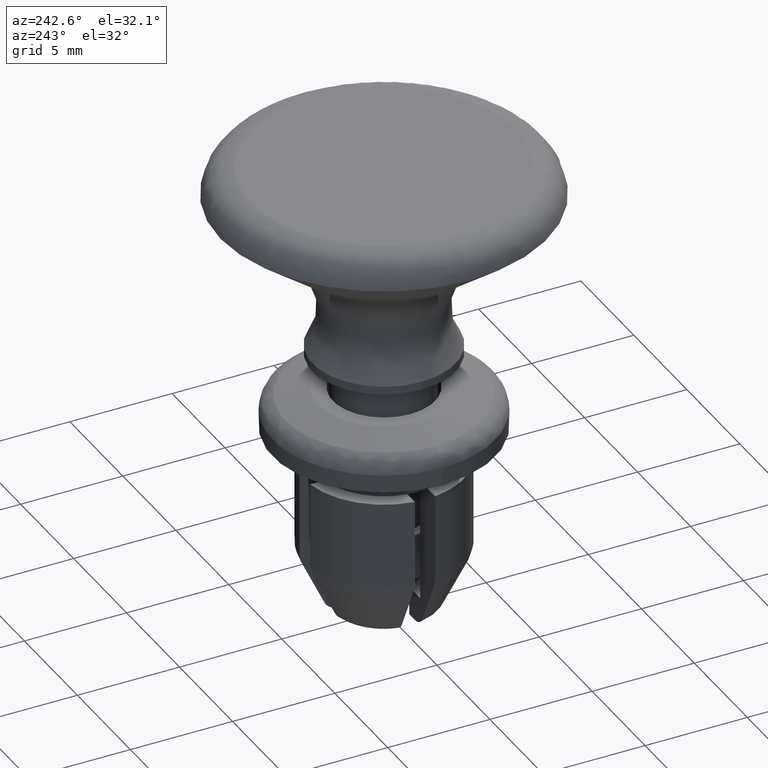
[diagram: clean part render]
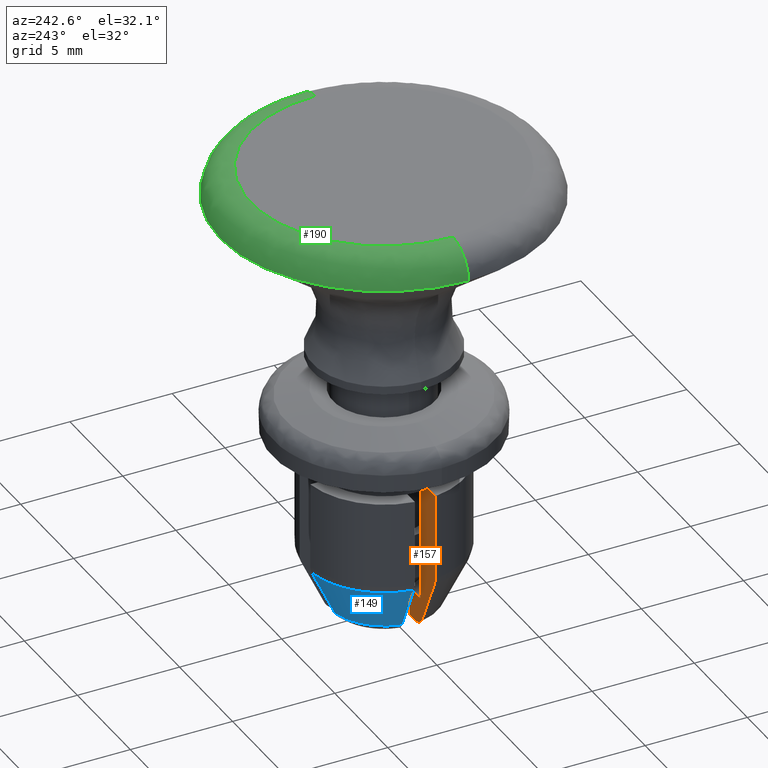
[diagram: same view with three faces highlighted in distinct colors, each labeled with its STEP entity id]
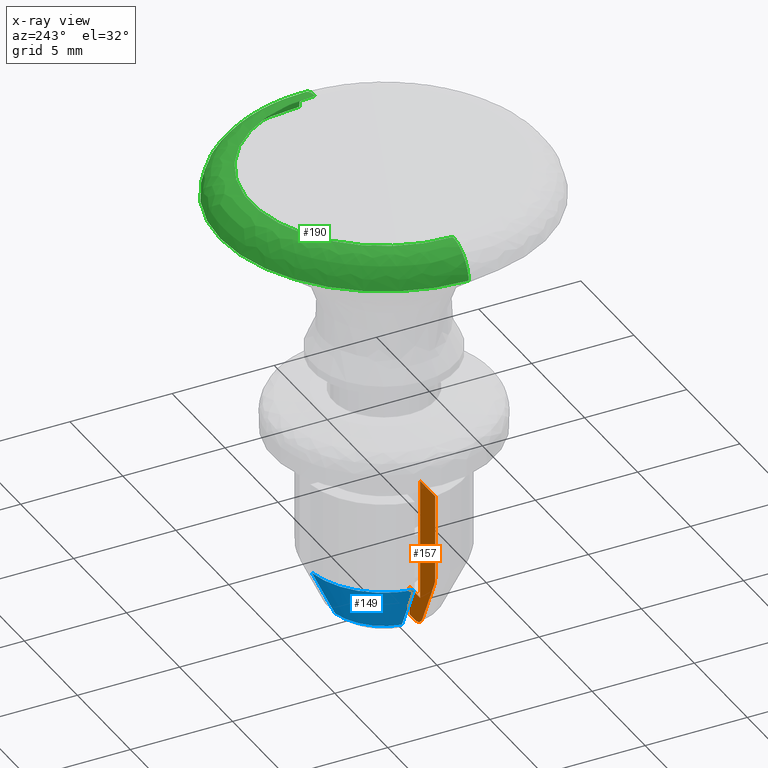
[diagram: x-ray of the same camera — body ghosted, the three highlighted faces saturated]
A machine part, auxiliary view with three faces highlighted in distinct colors.
The next image is the same camera in x-ray (body ghosted, the three faces saturated) — at least one of them is partly hidden behind the body in this view.
Their STEP definitions:

[orange] entity #157 — the highlighted planar face has unit normal (0, 1, 0).
#157=ADVANCED_FACE('',(#646),#645,.T.);
#645=PLANE('',#1310);
#646=FACE_OUTER_BOUND('',#1311,.T.);
#1307=CARTESIAN_POINT('',(-4.11317615704E+00,-5.00000000000E-01,-1.17403300002E+01));
#1308=DIRECTION('',(0.00000000000E+00,1.00000000000E+00,0.00000000000E+00));
#1309=DIRECTION('',(0.00000000000E+00,0.00000000000E+00,1.00000000000E+00));
#1310=AXIS2_PLACEMENT_3D('',#1307,#1308,#1309);
#1311=EDGE_LOOP('',(#1882,#1883,#1884,#1885,#1886,#1887,#1888,#1889,#1890,#1891));
#1882=ORIENTED_EDGE('',*,*,#2187,.F.);
#1883=ORIENTED_EDGE('',*,*,#2144,.T.);
#1884=ORIENTED_EDGE('',*,*,#2115,.F.);
#1885=ORIENTED_EDGE('',*,*,#2165,.T.);
#1886=ORIENTED_EDGE('',*,*,#2064,.F.);
#1887=ORIENTED_EDGE('',*,*,#2178,.F.);
#1888=ORIENTED_EDGE('',*,*,#2182,.F.);
#1889=ORIENTED_EDGE('',*,*,#2120,.T.);
#1890=ORIENTED_EDGE('',*,*,#2155,.F.);
#1891=ORIENTED_EDGE('',*,*,#2158,.F.);
#2064=EDGE_CURVE('',#2327,#2320,#2334,.T.);
#2115=EDGE_CURVE('',#2684,#2685,#2686,.T.);
#2120=EDGE_CURVE('',#2704,#2711,#2718,.T.);
#2144=EDGE_CURVE('',#2877,#2685,#2878,.T.);
#2155=EDGE_CURVE('',#2944,#2711,#2951,.T.);
#2158=EDGE_CURVE('',#2964,#2944,#2971,.T.);
#2165=EDGE_CURVE('',#2684,#2320,#3014,.T.);
#2178=EDGE_CURVE('',#3090,#2327,#3097,.T.);
#2182=EDGE_CURVE('',#2704,#3090,#3122,.T.);
#2187=EDGE_CURVE('',#2877,#2964,#3152,.T.);
#2320=VERTEX_POINT('',#3609);
#2327=VERTEX_POINT('',#3614);
#2334=(BOUNDED_CURVE() B_SPLINE_CURVE(3,(#3619,#3620,#3621,#3622,#3623,#3624),.UNSPECIFIED.,.F.,.F.) B_SPLINE_CURVE_WITH_KNOTS((4,2,4),(4.53704245333E-03,4.96659459827E-03,5.39612859432E-03),.UNSPECIFIED.) CURVE() GEOMETRIC_REPRESENTATION_ITEM() RATIONAL_B_SPLINE_CURVE((1.00000000000E+00,1.00000000000E+00,1.00000000000E+00,1.00000000000E+00,1.00000000000E+00,1.00000000000E+00)) REPRESENTATION_ITEM('') );
#2684=VERTEX_POINT('',#3855);
#2685=VERTEX_POINT('',#3856);
#2686=LINE('',#3857,#3858);
#2704=VERTEX_POINT('',#3868);
#2711=VERTEX_POINT('',#3873);
#2718=LINE('',#3878,#3879);
#2877=VERTEX_POINT('',#3986);
#2878=LINE('',#3987,#3988);
#2944=VERTEX_POINT('',#4030);
#2951=LINE('',#4035,#4036);
#2964=VERTEX_POINT('',#4043);
#2971=LINE('',#4048,#4049);
#3014=LINE('',#4074,#4075);
#3090=VERTEX_POINT('',#4127);
#3097=(BOUNDED_CURVE() B_SPLINE_CURVE(3,(#4132,#4133,#4134,#4135),.UNSPECIFIED.,.F.,.F.) B_SPLINE_CURVE_WITH_KNOTS((4,4),(3.02675948293E-03,5.68662966127E-03),.UNSPECIFIED.) CURVE() GEOMETRIC_REPRESENTATION_ITEM() RATIONAL_B_SPLINE_CURVE((1.00000000000E+00,1.00000000000E+00,1.00000000000E+00,1.00000000000E+00)) REPRESENTATION_ITEM('') );
#3122=(BOUNDED_CURVE() B_SPLINE_CURVE(3,(#4149,#4150,#4151,#4152,#4153,#4154),.UNSPECIFIED.,.F.,.F.) B_SPLINE_CURVE_WITH_KNOTS((4,2,4),(4.45689285409E-03,4.62552359386E-03,4.79415433363E-03),.UNSPECIFIED.) CURVE() GEOMETRIC_REPRESENTATION_ITEM() RATIONAL_B_SPLINE_CURVE((1.00000000000E+00,1.00000000000E+00,1.00000000000E+00,1.00000000000E+00,1.00000000000E+00,1.00000000000E+00)) REPRESENTATION_ITEM('') );
#3152=LINE('',#4171,#4172);
#3609=CARTESIAN_POINT('',(-1.95950752863E+00,-5.00004366197E-01,-1.10003000000E+01));
#3614=CARTESIAN_POINT('',(-2.65533500711E+00,-5.00000000000E-01,-1.05674000000E+01));
#3619=CARTESIAN_POINT('',(-2.65533500711E+00,-5.00000000000E-01,-1.05674000000E+01));
#3620=CARTESIAN_POINT('',(-2.59380589463E+00,-5.00000000000E-01,-1.06969771391E+01));
#3621=CARTESIAN_POINT('',(-2.49239977132E+00,-5.00000000000E-01,-1.08093185071E+01));
#3622=CARTESIAN_POINT('',(-2.24780289933E+00,-5.00000000000E-01,-1.09601820029E+01));
#3623=CARTESIAN_POINT('',(-2.10280856637E+00,-5.00000000000E-01,-1.10002966106E+01));
#3624=CARTESIAN_POINT('',(-1.95950752863E+00,-5.00000000000E-01,-1.10003000002E+01));
#3855=CARTESIAN_POINT('',(-1.41421356237E+00,-5.00000000000E-01,-1.10003000000E+01));
#3856=CARTESIAN_POINT('',(-1.41421356237E+00,-5.00000000000E-01,-9.60030000000E+00));
#3857=CARTESIAN_POINT('',(-1.41421356237E+00,-5.00000000000E-01,-1.10003000000E+01));
#3858=VECTOR('',#3859,1.40000000000E+00);
#3859=DIRECTION('',(0.00000000000E+00,0.00000000000E+00,1.00000000000E+00));
#3868=CARTESIAN_POINT('',(-3.86781592116E+00,-5.00000000000E-01,-7.83400000000E+00));
#3873=CARTESIAN_POINT('',(-3.86781592116E+00,-5.00000000000E-01,-3.60000000000E+00));
#3878=CARTESIAN_POINT('',(-3.86781592116E+00,-5.00000000000E-01,-7.83400000000E+00));
#3879=VECTOR('',#3880,4.23400000000E+00);
#3880=DIRECTION('',(0.00000000000E+00,0.00000000000E+00,1.00000000000E+00));
#3986=CARTESIAN_POINT('',(-2.44948974278E+00,-5.00000000000E-01,-9.60030000000E+00));
#3987=CARTESIAN_POINT('',(-2.44948974278E+00,-5.00000000000E-01,-9.60030000000E+00));
#3988=VECTOR('',#3989,1.03527618041E+00);
#3989=DIRECTION('',(1.00000000000E+00,0.00000000000E+00,0.00000000000E+00));
#4030=CARTESIAN_POINT('',(-3.16069612586E+00,-5.00000000000E-01,-3.60000000000E+00));
#4035=CARTESIAN_POINT('',(-3.16069612586E+00,-5.00000000000E-01,-3.60000000000E+00));
#4036=VECTOR('',#4037,7.07119795307E-01);
#4037=DIRECTION('',(-1.00000000000E+00,0.00000000000E+00,0.00000000000E+00));
#4043=CARTESIAN_POINT('',(-2.44948974278E+00,-5.00000000000E-01,-3.60000000000E+00));
#4048=CARTESIAN_POINT('',(-2.44948974278E+00,-5.00000000000E-01,-3.60000000000E+00));
#4049=VECTOR('',#4050,7.11206383073E-01);
#4050=DIRECTION('',(-1.00000000000E+00,0.00000000000E+00,0.00000000000E+00));
#4074=CARTESIAN_POINT('',(-1.41421356237E+00,-5.00000000000E-01,-1.10003000000E+01));
#4075=VECTOR('',#4076,5.45293966259E-01);
#4076=DIRECTION('',(-1.00000000000E+00,0.00000000000E+00,0.00000000000E+00));
#4127=CARTESIAN_POINT('',(-3.79146062763E+00,-5.00000000000E-01,-8.16238480092E+00));
#4132=CARTESIAN_POINT('',(-3.79146062763E+00,-5.00000000000E-01,-8.16238480092E+00));
#4133=CARTESIAN_POINT('',(-3.41387554992E+00,-5.00000000000E-01,-8.96458841921E+00));
#4134=CARTESIAN_POINT('',(-3.03564167719E+00,-5.00000000000E-01,-9.76649375746E+00));
#4135=CARTESIAN_POINT('',(-2.65533500711E+00,-5.00000000000E-01,-1.05674000000E+01));
#4149=CARTESIAN_POINT('',(-3.86781592116E+00,-5.00000000000E-01,-7.83400000000E+00));
#4150=CARTESIAN_POINT('',(-3.86781592116E+00,-5.00000000000E-01,-7.89022395838E+00));
#4151=CARTESIAN_POINT('',(-3.86134449724E+00,-5.00000000000E-01,-7.94715114384E+00));
#4152=CARTESIAN_POINT('',(-3.83565703050E+00,-5.00000000000E-01,-8.05769033458E+00));
#4153=CARTESIAN_POINT('',(-3.81630516403E+00,-5.00000000000E-01,-8.11180828695E+00));
#4154=CARTESIAN_POINT('',(-3.79146062763E+00,-5.00000000000E-01,-8.16238480092E+00));
#4171=CARTESIAN_POINT('',(-2.44948974278E+00,-5.00000000000E-01,-9.60030000000E+00));
#4172=VECTOR('',#4173,6.00030000000E+00);
#4173=DIRECTION('',(0.00000000000E+00,0.00000000000E+00,1.00000000000E+00));

[blue] entity #149 — the highlighted face is a freeform B-spline surface patch.
#149=ADVANCED_FACE('',(#566),#565,.T.);
#565=( BOUNDED_SURFACE() B_SPLINE_SURFACE( 2,1,((#1246,#1247),(#1248,#1249),(#1250,#1251)), .UNSPECIFIED.,.F.,.F.,.F.) B_SPLINE_SURFACE_WITH_KNOTS((3,3),(2,2),(0.00000000000E+00,1.00000000000E+00),(0.00000000000E+00,1.00000000000E+00), .UNSPECIFIED. ) GEOMETRIC_REPRESENTATION_ITEM() RATIONAL_B_SPLINE_SURFACE(((1.00000000000E+00,1.00000000000E+00),(7.93400168838E-01,7.93400168838E-01),(1.00000000000E+00,1.00000000000E+00))) REPRESENTATION_ITEM('') SURFACE() );
#566=FACE_OUTER_BOUND('',#1252,.T.);
#1246=CARTESIAN_POINT('',(-3.52858351003E-01,2.67863284371E+00,-1.05678842372E+01));
#1247=CARTESIAN_POINT('',(-4.99490869183E-01,3.79175565357E+00,-8.16190056376E+00));
#1248=CARTESIAN_POINT('',(-2.40791825235E+00,2.40791823282E+00,-1.05678842372E+01));
#1249=CARTESIAN_POINT('',(-3.40854390258E+00,3.40854387494E+00,-8.16190056376E+00));
#1250=CARTESIAN_POINT('',(-2.67863284657E+00,3.52858329279E-01,-1.05678842372E+01));
#1251=CARTESIAN_POINT('',(-3.79175565762E+00,4.99490838432E-01,-8.16190056376E+00));
#1252=EDGE_LOOP('',(#1838,#1839,#1840,#1841));
#1838=ORIENTED_EDGE('',*,*,#2172,.F.);
#1839=ORIENTED_EDGE('',*,*,#2070,.T.);
#1840=ORIENTED_EDGE('',*,*,#2179,.T.);
#1841=ORIENTED_EDGE('',*,*,#2180,.T.);
#2070=EDGE_CURVE('',#2376,#2369,#2377,.T.);
#2172=EDGE_CURVE('',#2376,#3058,#3059,.T.);
#2179=EDGE_CURVE('',#2369,#3103,#3104,.T.);
#2180=EDGE_CURVE('',#3103,#3058,#3110,.T.);
#2369=VERTEX_POINT('',#3642);
#2376=VERTEX_POINT('',#3649);
#2377=(BOUNDED_CURVE() B_SPLINE_CURVE(3,(#3650,#3651,#3652,#3653),.UNSPECIFIED.,.F.,.F.) B_SPLINE_CURVE_WITH_KNOTS((4,4),(3.31531142691E-03,5.97512270310E-03),.UNSPECIFIED.) CURVE() GEOMETRIC_REPRESENTATION_ITEM() RATIONAL_B_SPLINE_CURVE((1.00000000000E+00,1.00000000000E+00,1.00000000000E+00,1.00000000000E+00)) REPRESENTATION_ITEM('') );
#3058=VERTEX_POINT('',#4101);
#3059=CIRCLE('',#4105,2.70200000000E+00);
#3103=VERTEX_POINT('',#4136);
#3104=CIRCLE('',#4140,3.82428734418E+00);
#3110=(BOUNDED_CURVE() B_SPLINE_CURVE(3,(#4141,#4142,#4143,#4144),.UNSPECIFIED.,.F.,.F.) B_SPLINE_CURVE_WITH_KNOTS((4,4),(1.75155676958E-03,4.41142163983E-03),.UNSPECIFIED.) CURVE() GEOMETRIC_REPRESENTATION_ITEM() RATIONAL_B_SPLINE_CURVE((1.00000000000E+00,1.00000000000E+00,1.00000000000E+00,1.00000000000E+00)) REPRESENTATION_ITEM('') );
#3642=CARTESIAN_POINT('',(-3.79146062763E+00,5.00000000000E-01,-8.16238480092E+00));
#3649=CARTESIAN_POINT('',(-2.65533500711E+00,5.00000000000E-01,-1.05674000000E+01));
#3650=CARTESIAN_POINT('',(-2.65533500711E+00,5.00000000000E-01,-1.05674000000E+01));
#3651=CARTESIAN_POINT('',(-3.03564446289E+00,5.00000000000E-01,-9.76648789093E+00));
#3652=CARTESIAN_POINT('',(-3.41387625680E+00,5.00000000000E-01,-8.96458691741E+00));
#3653=CARTESIAN_POINT('',(-3.79146062763E+00,5.00000000000E-01,-8.16238480092E+00));
#4101=CARTESIAN_POINT('',(-5.00000000000E-01,2.65533500711E+00,-1.05674000000E+01));
#4102=CARTESIAN_POINT('',(0.00000000000E+00,0.00000000000E+00,-1.05674000000E+01));
#4103=DIRECTION('',(0.00000000000E+00,0.00000000000E+00,-1.00000000000E+00));
#4104=DIRECTION('',(1.00000000000E+00,-0.00000000000E+00,-0.00000000000E+00));
#4105=AXIS2_PLACEMENT_3D('',#4102,#4103,#4104);
#4136=CARTESIAN_POINT('',(-5.00000000000E-01,3.79146062763E+00,-8.16238480092E+00));
#4137=CARTESIAN_POINT('',(0.00000000000E+00,0.00000000000E+00,-8.16238480092E+00));
#4138=DIRECTION('',(0.00000000000E+00,0.00000000000E+00,-1.00000000000E+00));
#4139=DIRECTION('',(1.00000000000E+00,-0.00000000000E+00,-0.00000000000E+00));
#4140=AXIS2_PLACEMENT_3D('',#4137,#4138,#4139);
#4141=CARTESIAN_POINT('',(-5.00000000000E-01,3.79146062763E+00,-8.16238480092E+00));
#4142=CARTESIAN_POINT('',(-5.00000000000E-01,3.41387629580E+00,-8.96458683454E+00));
#4143=CARTESIAN_POINT('',(-5.00000000000E-01,3.03564344098E+00,-9.76649004301E+00));
#4144=CARTESIAN_POINT('',(-5.00000000000E-01,2.65533500711E+00,-1.05674000000E+01));

[green] entity #190 — the highlighted face is a freeform B-spline surface patch.
#190=ADVANCED_FACE('',(#979),#978,.T.);
#978=( BOUNDED_SURFACE() B_SPLINE_SURFACE( 2,2,((#1620,#1621,#1622,#1623,#1624),(#1625,#1626,#1627,#1628,#1629),(#1630,#1631,#1632,#1633,#1634),(#1635,#1636,#1637,#1638,#1639),(#1640,#1641,#1642,#1643,#1644)), .UNSPECIFIED.,.F.,.F.,.F.) B_SPLINE_SURFACE_WITH_KNOTS((3,2,3),(3,2,3),(0.00000000000E+00,5.00000000000E-01,1.00000000000E+00),(0.00000000000E+00,5.00000000000E-01,1.00000000000E+00), .UNSPECIFIED. ) GEOMETRIC_REPRESENTATION_ITEM() RATIONAL_B_SPLINE_SURFACE(((1.00000000000E+00,7.30875553020E-01,1.00000000000E+00,7.30875553020E-01,1.00000000000E+00),(7.07106781187E-01,5.16807059744E-01,7.07106781187E-01,5.16807059744E-01,7.07106781187E-01),(1.00000000000E+00,7.30875553020E-01,1.00000000000E+00,7.30875553020E-01,1.00000000000E+00),(7.07106781187E-01,5.16807059744E-01,7.07106781187E-01,5.16807059744E-01,7.07106781187E-01),(1.00000000000E+00,7.30875553020E-01,1.00000000000E+00,7.30875553020E-01,1.00000000000E+00))) REPRESENTATION_ITEM('') SURFACE() );
#979=FACE_OUTER_BOUND('',#1645,.T.);
#1620=CARTESIAN_POINT('',(-5.00680873103E+00,-2.02502006219E-20,-1.39746277800E+00));
#1621=CARTESIAN_POINT('',(-5.10256067699E+00,-2.06374724790E-20,-9.11418930382E-16));
#1622=CARTESIAN_POINT('',(-6.50330000000E+00,-2.63028081916E-20,-2.22044604925E-16));
#1623=CARTESIAN_POINT('',(-7.90403932301E+00,-3.19681439042E-20,0.00000000000E+00));
#1624=CARTESIAN_POINT('',(-7.99979126897E+00,-3.23554157613E-20,-1.39746277800E+00));
#1625=CARTESIAN_POINT('',(-5.00680873103E+00,5.00680873103E+00,-1.39746277800E+00));
#1626=CARTESIAN_POINT('',(-5.10256067699E+00,5.10256067699E+00,-9.11418930382E-16));
#1627=CARTESIAN_POINT('',(-6.50330000000E+00,6.50330000000E+00,-2.22044604925E-16));
#1628=CARTESIAN_POINT('',(-7.90403932301E+00,7.90403932301E+00,0.00000000000E+00));
#1629=CARTESIAN_POINT('',(-7.99979126897E+00,7.99979126897E+00,-1.39746277800E+00));
#1630=CARTESIAN_POINT('',(-3.06598864521E-16,5.00680873103E+00,-1.39746277800E+00));
#1631=CARTESIAN_POINT('',(-3.12462367499E-16,5.10256067699E+00,-9.11418930382E-16));
#1632=CARTESIAN_POINT('',(-3.98238579253E-16,6.50330000000E+00,-2.22044604925E-16));
#1633=CARTESIAN_POINT('',(-4.84014791007E-16,7.90403932301E+00,0.00000000000E+00));
#1634=CARTESIAN_POINT('',(-4.89878293985E-16,7.99979126897E+00,-1.39746277800E+00));
#1635=CARTESIAN_POINT('',(5.00680873103E+00,5.00680873103E+00,-1.39746277800E+00));
#1636=CARTESIAN_POINT('',(5.10256067699E+00,5.10256067699E+00,-9.11418930382E-16));
#1637=CARTESIAN_POINT('',(6.50330000000E+00,6.50330000000E+00,-2.22044604925E-16));
#1638=CARTESIAN_POINT('',(7.90403932301E+00,7.90403932301E+00,0.00000000000E+00));
#1639=CARTESIAN_POINT('',(7.99979126897E+00,7.99979126897E+00,-1.39746277800E+00));
#1640=CARTESIAN_POINT('',(5.00680873103E+00,6.13177478841E-16,-1.39746277800E+00));
#1641=CARTESIAN_POINT('',(5.10256067699E+00,6.24904097525E-16,-9.11418930382E-16));
#1642=CARTESIAN_POINT('',(6.50330000000E+00,7.96450855698E-16,-2.22044604925E-16));
#1643=CARTESIAN_POINT('',(7.90403932301E+00,9.67997613870E-16,0.00000000000E+00));
#1644=CARTESIAN_POINT('',(7.99979126897E+00,9.79724232555E-16,-1.39746277800E+00));
#1645=EDGE_LOOP('',(#2040,#2041,#2042,#2043));
#2040=ORIENTED_EDGE('',*,*,#2203,.T.);
#2041=ORIENTED_EDGE('',*,*,#2246,.T.);
#2042=ORIENTED_EDGE('',*,*,#2245,.F.);
#2043=ORIENTED_EDGE('',*,*,#2247,.F.);
#2203=EDGE_CURVE('',#3247,#3246,#3254,.T.);
#2245=EDGE_CURVE('',#3513,#3512,#3532,.T.);
#2246=EDGE_CURVE('',#3246,#3512,#3538,.T.);
#2247=EDGE_CURVE('',#3247,#3513,#3544,.T.);
#3246=VERTEX_POINT('',#4216);
#3247=VERTEX_POINT('',#4217);
#3254=CIRCLE('',#4225,6.50330000000E+00);
#3512=VERTEX_POINT('',#4376);
#3513=VERTEX_POINT('',#4377);
#3532=CIRCLE('',#4389,7.99979126897E+00);
#3538=(BOUNDED_CURVE() B_SPLINE_CURVE(2,(#4390,#4391,#4392),.UNSPECIFIED.,.F.,.F.) B_SPLINE_CURVE_WITH_KNOTS((3,3),(5.00000000000E-01,1.00000000000E+00),.UNSPECIFIED.) CURVE() GEOMETRIC_REPRESENTATION_ITEM() RATIONAL_B_SPLINE_CURVE((1.00000000000E+00,7.30875553020E-01,1.00000000000E+00)) REPRESENTATION_ITEM('') );
#3544=(BOUNDED_CURVE() B_SPLINE_CURVE(3,(#4393,#4394,#4395,#4396,#4397),.UNSPECIFIED.,.F.,.F.) B_SPLINE_CURVE_WITH_KNOTS((4,1,4),(4.99999994637E-01,7.49999996946E-01,1.00000000000E+00),.UNSPECIFIED.) CURVE() GEOMETRIC_REPRESENTATION_ITEM() RATIONAL_B_SPLINE_CURVE((1.00000000000E+00,1.00000000000E+00,1.00000000000E+00,1.00000000000E+00,1.00000000000E+00)) REPRESENTATION_ITEM('') );
#4216=CARTESIAN_POINT('',(6.50330000000E+00,0.00000000000E+00,0.00000000000E+00));
#4217=CARTESIAN_POINT('',(-6.50330000000E+00,0.00000000000E+00,0.00000000000E+00));
#4222=CARTESIAN_POINT('',(0.00000000000E+00,0.00000000000E+00,0.00000000000E+00));
#4223=DIRECTION('',(-0.00000000000E+00,0.00000000000E+00,-1.00000000000E+00));
#4224=DIRECTION('',(-1.00000000000E+00,-1.22460635382E-16,0.00000000000E+00));
#4225=AXIS2_PLACEMENT_3D('',#4222,#4223,#4224);
#4376=CARTESIAN_POINT('',(7.99979126897E+00,8.88178419700E-16,-1.39746277800E+00));
#4377=CARTESIAN_POINT('',(-7.99979126897E+00,0.00000000000E+00,-1.39746277800E+00));
#4386=CARTESIAN_POINT('',(0.00000000000E+00,0.00000000000E+00,-1.39746277800E+00));
#4387=DIRECTION('',(-0.00000000000E+00,0.00000000000E+00,-1.00000000000E+00));
#4388=DIRECTION('',(-1.00000000000E+00,-1.22460635382E-16,0.00000000000E+00));
#4389=AXIS2_PLACEMENT_3D('',#4386,#4387,#4388);
#4390=CARTESIAN_POINT('',(6.50330000000E+00,-7.96398250081E-16,-2.22044604925E-16));
#4391=CARTESIAN_POINT('',(7.90403932301E+00,-9.67933677582E-16,0.00000000000E+00));
#4392=CARTESIAN_POINT('',(7.99979126897E+00,-9.79659521723E-16,-1.39746277800E+00));
#4393=CARTESIAN_POINT('',(-6.50329997804E+00,8.88178418477E-16,-3.82847057052E-16));
#4394=CARTESIAN_POINT('',(-6.87576812361E+00,9.74659612930E-16,2.78235265844E-03));
#4395=CARTESIAN_POINT('',(-7.62769523838E+00,1.20210147910E-15,-2.95926653719E-01));
#4396=CARTESIAN_POINT('',(-7.97710587518E+00,1.41042757334E-15,-1.02567569553E+00));
#4397=CARTESIAN_POINT('',(-7.99979126897E+00,1.48029736617E-15,-1.39746277800E+00));